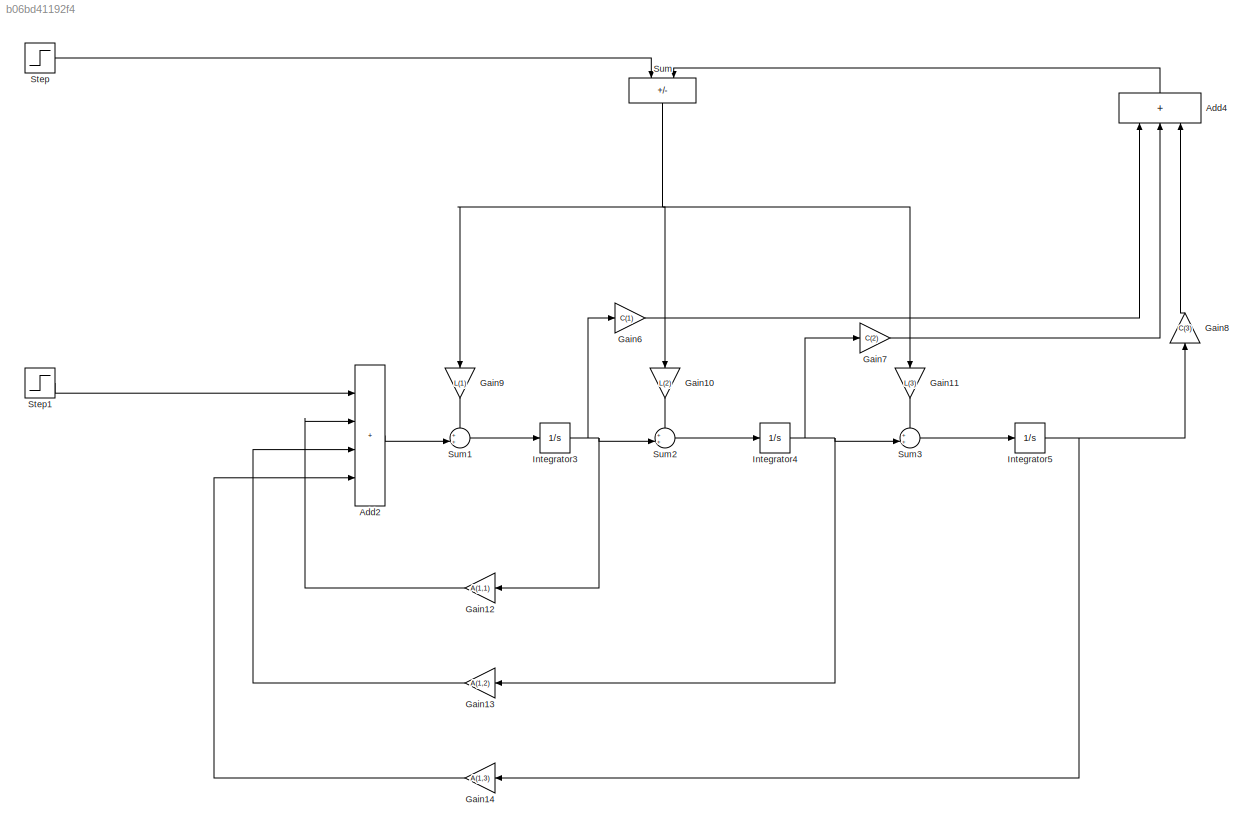
MODEL slx_b06bd41192f4
KIND model
CONFIG AbsTol = auto
CONFIG EnableMultiTasking = off
CONFIG FixedStep = auto
CONFIG MaxStep = auto
CONFIG MinStep = auto
CONFIG RelTol = 1e-3
CONFIG SampleTimeConstraint = Unconstrained
CONFIG SolverName = VariableStepAuto
CONFIG StartTime = 0.0
CONFIG StopTime = 10.0
BLOCK [Sum] Add2
  IconShape = rectangular
  Inputs = ++++
BLOCK [Sum] Add4
  IconShape = rectangular
  Inputs = +++
  NameLocation = right
BLOCK [Gain] Gain10
  Gain = L(2)
  NameLocation = left
BLOCK [Gain] Gain11
  Gain = L(3)
  NameLocation = left
BLOCK [Gain] Gain12
  Gain = A(1,1)
  NameLocation = top
BLOCK [Gain] Gain13
  Gain = A(1,2)
  NameLocation = top
BLOCK [Gain] Gain14
  Gain = A(1,3)
  NameLocation = top
BLOCK [Gain] Gain6
  Gain = C(1)
BLOCK [Gain] Gain7
  Gain = C(2)
BLOCK [Gain] Gain8
  Gain = C(3)
  NameLocation = right
BLOCK [Gain] Gain9
  Gain = L(1)
  NameLocation = left
BLOCK [Integrator] Integrator3
  InitialCondition = 10
BLOCK [Integrator] Integrator4
  InitialCondition = 20
BLOCK [Integrator] Integrator5
  InitialCondition = 30
BLOCK [Step] Step
  SampleTime = 0
BLOCK [Step] Step1
  SampleTime = 0
BLOCK [Sum] Sum
  IconShape = rectangular
  Inputs = +-
  NameLocation = left
BLOCK [Sum] Sum1
  Inputs = ++|
BLOCK [Sum] Sum2
  Inputs = ++|
BLOCK [Sum] Sum3
  Inputs = ++|
LINE Add2:1 -> Sum1:2
LINE Add4:1 -> Sum:2
LINE Gain10:1 -> Sum2:1
LINE Gain11:1 -> Sum3:1
LINE Gain12:1 -> Add2:2
LINE Gain13:1 -> Add2:3
LINE Gain14:1 -> Add2:4
LINE Gain6:1 -> Add4:1
LINE Gain7:1 -> Add4:2
LINE Gain8:1 -> Add4:3
LINE Gain9:1 -> Sum1:1
NET Integrator3:1 -> Gain12:1, Gain6:1, Sum2:2
NET Integrator4:1 -> Gain13:1, Gain7:1, Sum3:2
NET Integrator5:1 -> Gain14:1, Gain8:1
LINE Step1:1 -> Add2:1
LINE Step:1 -> Sum:1
LINE Sum1:1 -> Integrator3:1
LINE Sum2:1 -> Integrator4:1
LINE Sum3:1 -> Integrator5:1
NET Sum:1 -> Gain10:1, Gain11:1, Gain9:1
note: NET lines group one-source signal fan-out (src -> all destinations, sorted); 1:1 wires keep LINE
